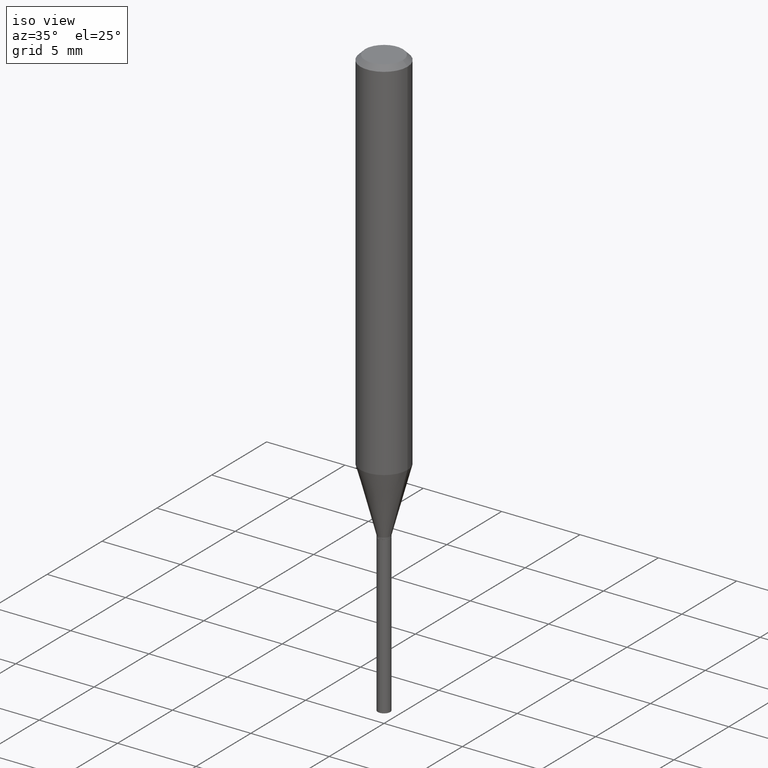
[diagram: clean part render]
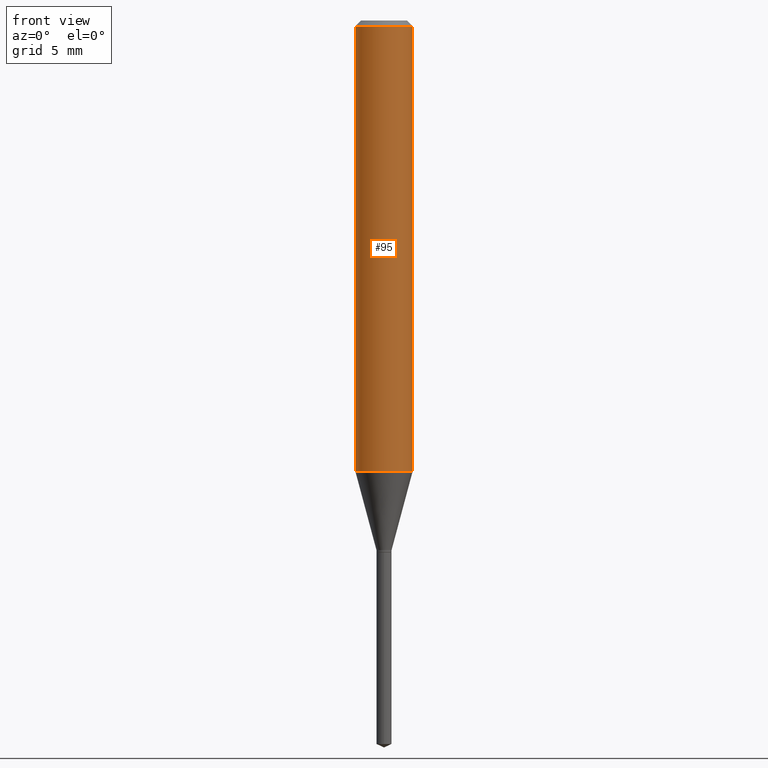
[diagram: tour spotlight — one face highlighted and labeled with its STEP entity id]
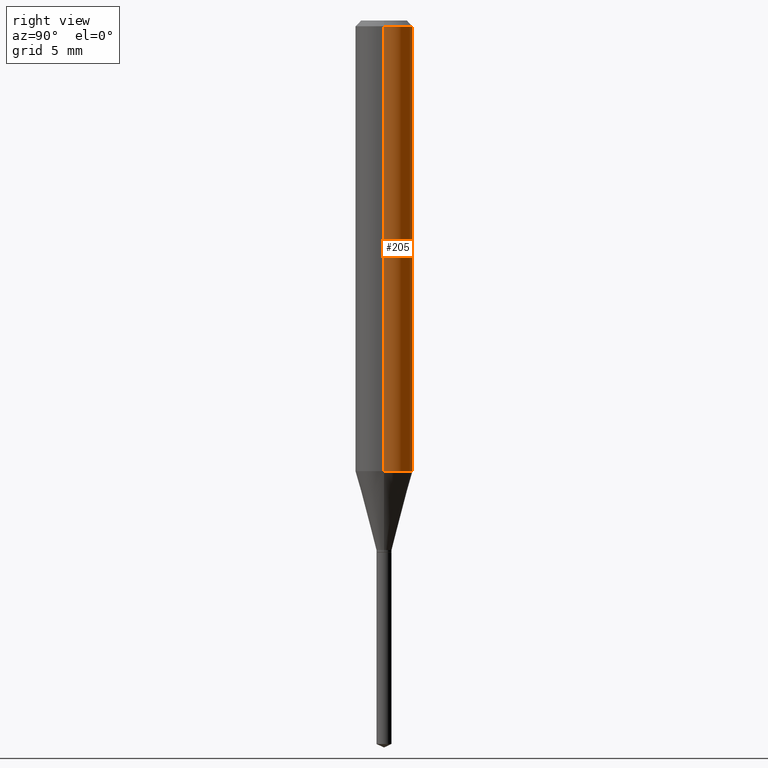
[diagram: tour spotlight — one face highlighted and labeled with its STEP entity id]
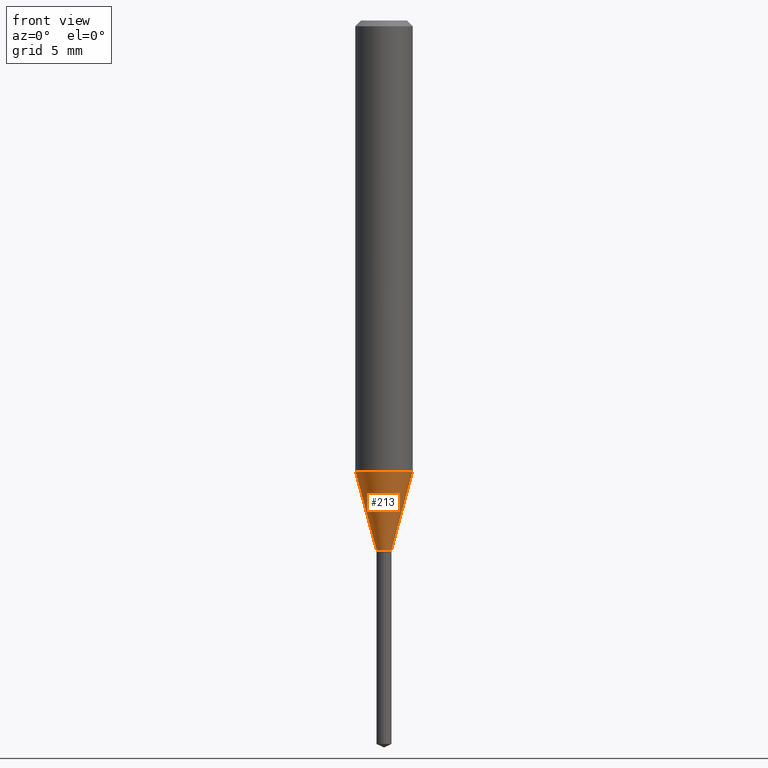
[diagram: tour spotlight — one face highlighted and labeled with its STEP entity id]
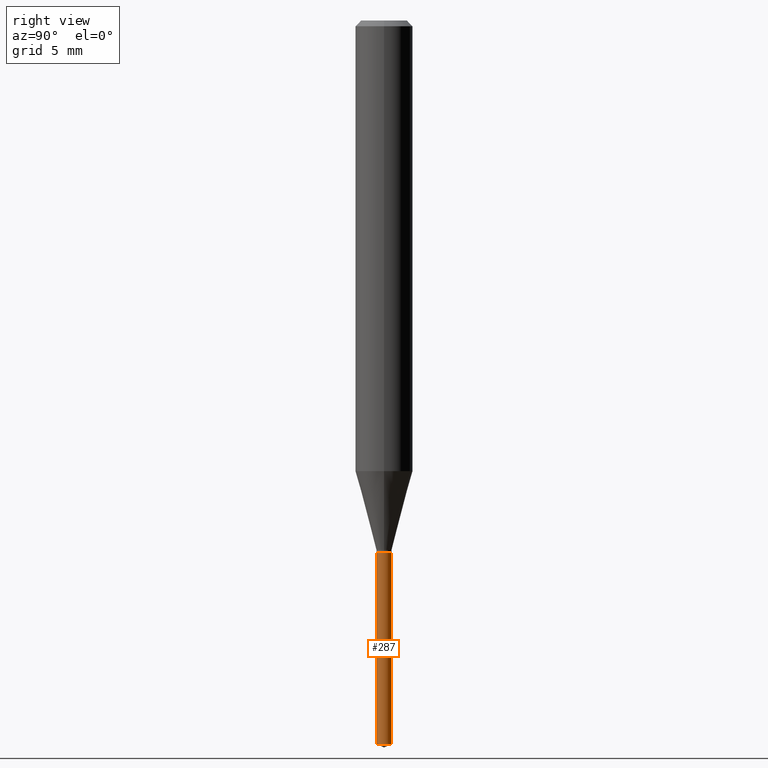
[diagram: tour spotlight — one face highlighted and labeled with its STEP entity id]
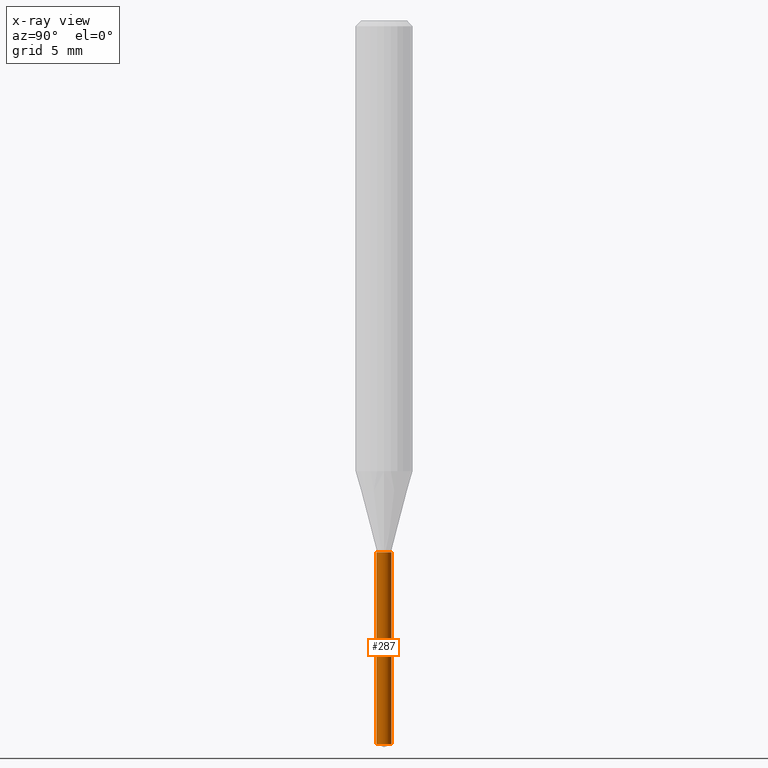
[diagram: x-ray of the same camera — body ghosted, this tour face saturated]
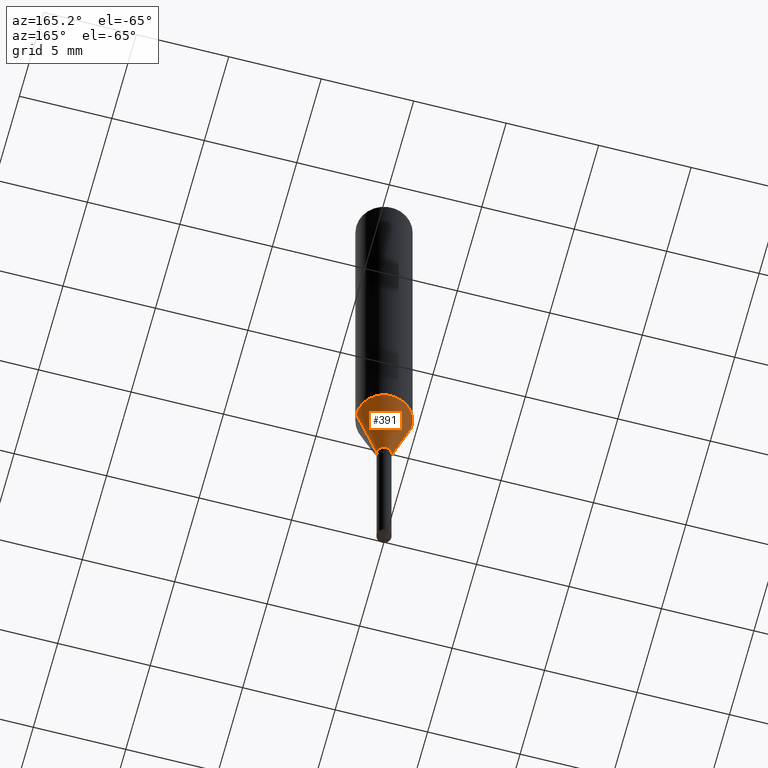
[diagram: tour spotlight — one face highlighted and labeled with its STEP entity id]
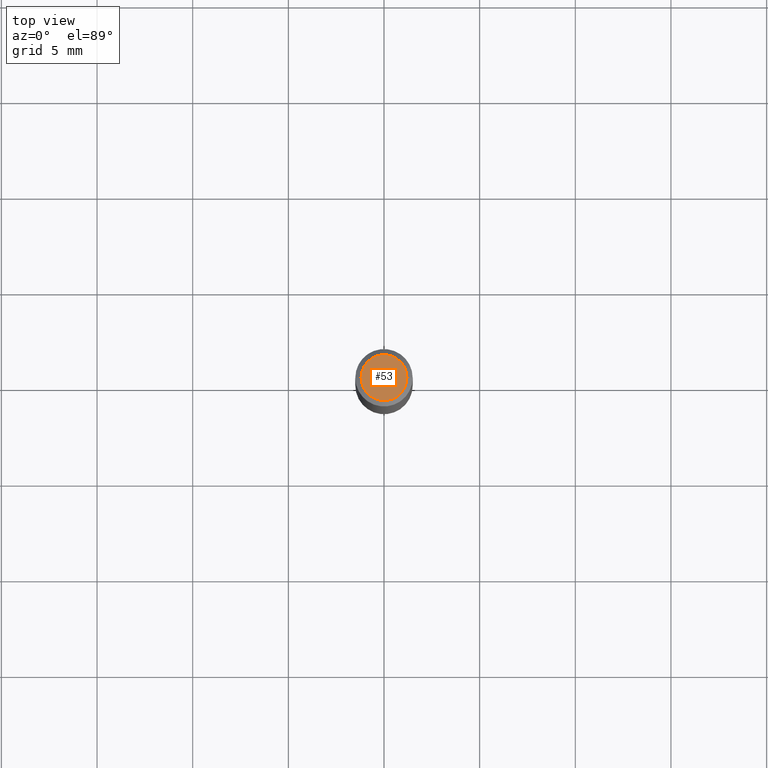
[diagram: tour spotlight — one face highlighted and labeled with its STEP entity id]
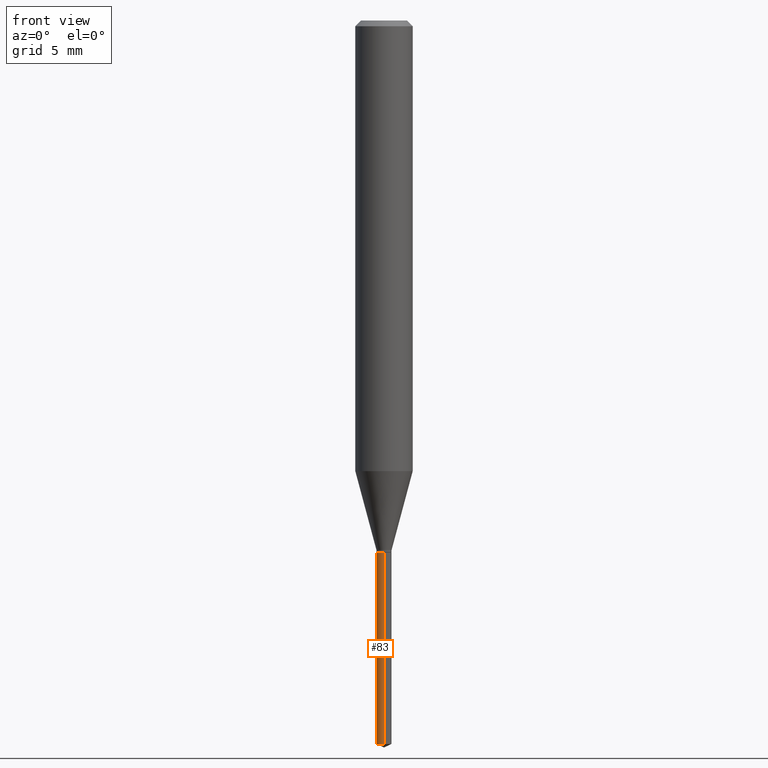
[diagram: tour spotlight — one face highlighted and labeled with its STEP entity id]
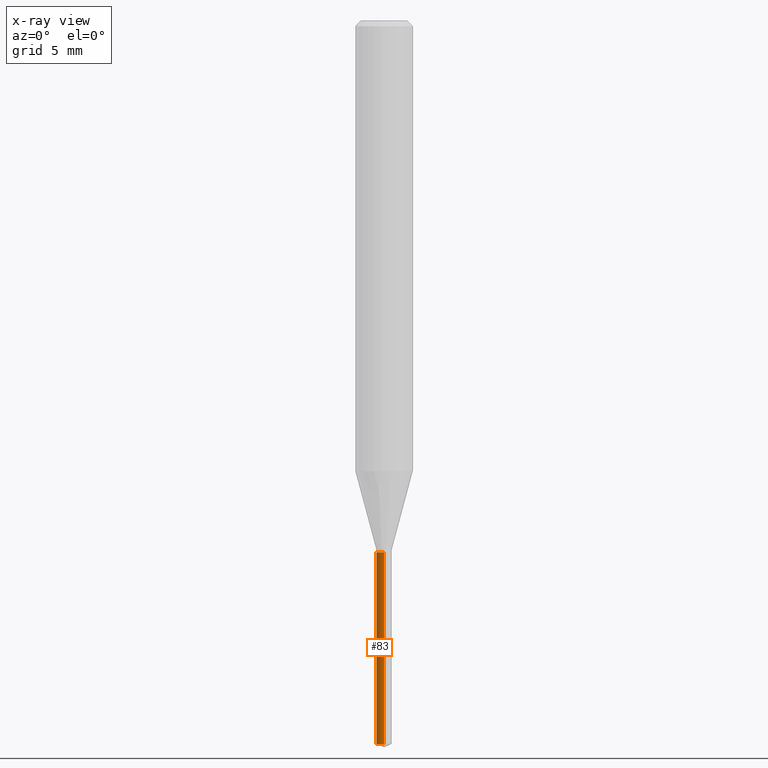
[diagram: x-ray of the same camera — body ghosted, this tour face saturated]
A machine part: a face-by-face anatomy tour. The part has 17 B-rep faces; the first image is the clean iso view, then the 7 largest visible faces are spotlighted one at a time (largest first), each with its STEP entity span.

Face 1 — front view, entity #95. In plain terms, the highlighted cylindrical surface (edge-blend (fillet) strip) has radius 1.4999 mm, axis along (-0, 0, 1).
Definition (entity closure, byte-faithful):
#32 = EDGE_CURVE ( 'NONE', #226, #334, #427, .T. ) ;
#38 = AXIS2_PLACEMENT_3D ( 'NONE', #190, #447, #75 ) ;
#59 = ORIENTED_EDGE ( 'NONE', *, *, #352, .T. ) ;
#75 = DIRECTION ( 'NONE',  ( 1.000000000000000000, -6.982962677686266711E-15, 0.000000000000000000 ) ) ;
#95 = ADVANCED_FACE ( 'NONE', ( #417 ), #112, .T. ) ;
#112 = CYLINDRICAL_SURFACE ( 'NONE', #240, 0.05905000000000005383 ) ;
#168 = CARTESIAN_POINT ( 'NONE',  ( 0.05905000000000010935, -3.650538529053141123E-15, -0.9274557898707536108 ) ) ;
#171 = CIRCLE ( 'NONE', #199, 0.05905000000000010935 ) ;
#182 = DIRECTION ( 'NONE',  ( 1.000000000000000000, -6.982962677686267499E-15, 0.000000000000000000 ) ) ;
#190 = CARTESIAN_POINT ( 'NONE',  ( 2.888098660104663766E-31, -4.123439461173779647E-17, -0.01181000000000007044 ) ) ;
#199 = AXIS2_PLACEMENT_3D ( 'NONE', #436, #296, #182 ) ;
#201 = ORIENTED_EDGE ( 'NONE', *, *, #32, .F. ) ;
#206 = LINE ( 'NONE', #275, #411 ) ;
#214 = CARTESIAN_POINT ( 'NONE',  ( -0.05905000000000010935, -2.818619097469426315E-15, -0.9274557898707536108 ) ) ;
#226 = VERTEX_POINT ( 'NONE', #278 ) ;
#238 = EDGE_LOOP ( 'NONE', ( #437, #362, #59, #201 ) ) ;
#240 = AXIS2_PLACEMENT_3D ( 'NONE', #268, #241, #413 ) ;
#241 = DIRECTION ( 'NONE',  ( -2.445468806185136597E-29, 3.491481338843145583E-15, 1.000000000000000000 ) ) ;
#251 = EDGE_CURVE ( 'NONE', #330, #226, #206, .T. ) ;
#252 = VECTOR ( 'NONE', #329, 39.37007874015748143 ) ;
#268 = CARTESIAN_POINT ( 'NONE',  ( 0.000000000000000000, 0.000000000000000000, 0.000000000000000000 ) ) ;
#275 = CARTESIAN_POINT ( 'NONE',  ( -0.05905000000000005383, 4.195754854663395423E-16, -2.904631170795524694E-30 ) ) ;
#278 = CARTESIAN_POINT ( 'NONE',  ( -0.05904999999999999832, -1.220139003307412078E-15, -0.01181000000000007044 ) ) ;
#285 = CARTESIAN_POINT ( 'NONE',  ( 0.05905000000000005383, -4.123439461173744271E-16, 2.879382386107502672E-30 ) ) ;
#296 = DIRECTION ( 'NONE',  ( -2.445468806185136597E-29, 3.491481338843145583E-15, 1.000000000000000000 ) ) ;
#307 = VERTEX_POINT ( 'NONE', #168 ) ;
#312 = DIRECTION ( 'NONE',  ( -2.445468806185136877E-29, 3.491481338843145188E-15, 1.000000000000000000 ) ) ;
#329 = DIRECTION ( 'NONE',  ( -2.445468806185136877E-29, 3.491481338843145188E-15, 1.000000000000000000 ) ) ;
#330 = VERTEX_POINT ( 'NONE', #214 ) ;
#334 = VERTEX_POINT ( 'NONE', #401 ) ;
#352 = EDGE_CURVE ( 'NONE', #307, #334, #359, .T. ) ;
#359 = LINE ( 'NONE', #285, #252 ) ;
#362 = ORIENTED_EDGE ( 'NONE', *, *, #460, .T. ) ;
#401 = CARTESIAN_POINT ( 'NONE',  ( 0.05904999999999999832, -4.535783407291118600E-16, -0.01181000000000007044 ) ) ;
#411 = VECTOR ( 'NONE', #312, 39.37007874015748143 ) ;
#413 = DIRECTION ( 'NONE',  ( 1.000000000000000000, -6.982962677686266711E-15, 4.876176775795935793E-29 ) ) ;
#417 = FACE_OUTER_BOUND ( 'NONE', #238, .T. ) ;
#427 = CIRCLE ( 'NONE', #38, 0.05904999999999999832 ) ;
#436 = CARTESIAN_POINT ( 'NONE',  ( 2.268064203244724858E-29, -3.238194582935765808E-15, -0.9274557898707536108 ) ) ;
#437 = ORIENTED_EDGE ( 'NONE', *, *, #251, .F. ) ;
#447 = DIRECTION ( 'NONE',  ( -2.445468806185136597E-29, 3.491481338843145583E-15, 1.000000000000000000 ) ) ;
#460 = EDGE_CURVE ( 'NONE', #330, #307, #171, .T. ) ;

Face 2 — right view, entity #205. In plain terms, the highlighted cylindrical surface (edge-blend (fillet) strip) has radius 1.4999 mm, axis along (-0, 0, 1).
Definition (entity closure, byte-faithful):
#6 = CIRCLE ( 'NONE', #463, 0.05904999999999999832 ) ;
#23 = DIRECTION ( 'NONE',  ( -2.445468806185136597E-29, 3.491481338843145583E-15, 1.000000000000000000 ) ) ;
#48 = CYLINDRICAL_SURFACE ( 'NONE', #313, 0.05905000000000005383 ) ;
#61 = CIRCLE ( 'NONE', #196, 0.05905000000000010935 ) ;
#149 = DIRECTION ( 'NONE',  ( 1.000000000000000000, -6.982962677686267499E-15, 0.000000000000000000 ) ) ;
#166 = DIRECTION ( 'NONE',  ( -2.445468806185136597E-29, 3.491481338843145583E-15, 1.000000000000000000 ) ) ;
#168 = CARTESIAN_POINT ( 'NONE',  ( 0.05905000000000010935, -3.650538529053141123E-15, -0.9274557898707536108 ) ) ;
#196 = AXIS2_PLACEMENT_3D ( 'NONE', #378, #303, #149 ) ;
#204 = DIRECTION ( 'NONE',  ( 1.000000000000000000, -6.982962677686266711E-15, 4.876176775795935793E-29 ) ) ;
#205 = ADVANCED_FACE ( 'NONE', ( #423 ), #48, .T. ) ;
#206 = LINE ( 'NONE', #275, #411 ) ;
#214 = CARTESIAN_POINT ( 'NONE',  ( -0.05905000000000010935, -2.818619097469426315E-15, -0.9274557898707536108 ) ) ;
#216 = DIRECTION ( 'NONE',  ( 1.000000000000000000, -6.982962677686266711E-15, 0.000000000000000000 ) ) ;
#226 = VERTEX_POINT ( 'NONE', #278 ) ;
#251 = EDGE_CURVE ( 'NONE', #330, #226, #206, .T. ) ;
#252 = VECTOR ( 'NONE', #329, 39.37007874015748143 ) ;
#275 = CARTESIAN_POINT ( 'NONE',  ( -0.05905000000000005383, 4.195754854663395423E-16, -2.904631170795524694E-30 ) ) ;
#278 = CARTESIAN_POINT ( 'NONE',  ( -0.05904999999999999832, -1.220139003307412078E-15, -0.01181000000000007044 ) ) ;
#285 = CARTESIAN_POINT ( 'NONE',  ( 0.05905000000000005383, -4.123439461173744271E-16, 2.879382386107502672E-30 ) ) ;
#289 = CARTESIAN_POINT ( 'NONE',  ( 2.888098660104663766E-31, -4.123439461173779647E-17, -0.01181000000000007044 ) ) ;
#294 = EDGE_LOOP ( 'NONE', ( #368, #295, #453, #374 ) ) ;
#295 = ORIENTED_EDGE ( 'NONE', *, *, #251, .T. ) ;
#303 = DIRECTION ( 'NONE',  ( -2.445468806185136597E-29, 3.491481338843145583E-15, 1.000000000000000000 ) ) ;
#307 = VERTEX_POINT ( 'NONE', #168 ) ;
#312 = DIRECTION ( 'NONE',  ( -2.445468806185136877E-29, 3.491481338843145188E-15, 1.000000000000000000 ) ) ;
#313 = AXIS2_PLACEMENT_3D ( 'NONE', #430, #166, #204 ) ;
#329 = DIRECTION ( 'NONE',  ( -2.445468806185136877E-29, 3.491481338843145188E-15, 1.000000000000000000 ) ) ;
#330 = VERTEX_POINT ( 'NONE', #214 ) ;
#334 = VERTEX_POINT ( 'NONE', #401 ) ;
#352 = EDGE_CURVE ( 'NONE', #307, #334, #359, .T. ) ;
#359 = LINE ( 'NONE', #285, #252 ) ;
#368 = ORIENTED_EDGE ( 'NONE', *, *, #468, .T. ) ;
#371 = EDGE_CURVE ( 'NONE', #334, #226, #6, .T. ) ;
#374 = ORIENTED_EDGE ( 'NONE', *, *, #352, .F. ) ;
#378 = CARTESIAN_POINT ( 'NONE',  ( 2.268064203244724858E-29, -3.238194582935765808E-15, -0.9274557898707536108 ) ) ;
#401 = CARTESIAN_POINT ( 'NONE',  ( 0.05904999999999999832, -4.535783407291118600E-16, -0.01181000000000007044 ) ) ;
#411 = VECTOR ( 'NONE', #312, 39.37007874015748143 ) ;
#423 = FACE_OUTER_BOUND ( 'NONE', #294, .T. ) ;
#430 = CARTESIAN_POINT ( 'NONE',  ( 0.000000000000000000, 0.000000000000000000, 0.000000000000000000 ) ) ;
#453 = ORIENTED_EDGE ( 'NONE', *, *, #371, .F. ) ;
#463 = AXIS2_PLACEMENT_3D ( 'NONE', #289, #23, #216 ) ;
#468 = EDGE_CURVE ( 'NONE', #307, #330, #61, .T. ) ;

Face 3 — front view, entity #213. In plain terms, the highlighted conical surface has half-angle 15 deg.
Definition (entity closure, byte-faithful):
#13 = AXIS2_PLACEMENT_3D ( 'NONE', #390, #212, #276 ) ;
#94 = CARTESIAN_POINT ( 'NONE',  ( -0.01554999999999999959, -3.694526967660564608E-15, -1.089799999999999880 ) ) ;
#96 = VECTOR ( 'NONE', #350, 39.37007874015748854 ) ;
#103 = VERTEX_POINT ( 'NONE', #342 ) ;
#118 = EDGE_LOOP ( 'NONE', ( #348, #328, #442, #419 ) ) ;
#122 = CARTESIAN_POINT ( 'NONE',  ( 2.665071904980561815E-29, -3.805016363071259851E-15, -1.089799999999999880 ) ) ;
#125 = CARTESIAN_POINT ( 'NONE',  ( 0.01554999999999999959, -3.913601432709281317E-15, -1.089799999999999880 ) ) ;
#128 = FACE_OUTER_BOUND ( 'NONE', #118, .T. ) ;
#139 = LINE ( 'NONE', #94, #407 ) ;
#162 = CARTESIAN_POINT ( 'NONE',  ( 0.01554999999999999959, -3.913601432709281317E-15, -1.089799999999999880 ) ) ;
#168 = CARTESIAN_POINT ( 'NONE',  ( 0.05905000000000010935, -3.650538529053141123E-15, -0.9274557898707536108 ) ) ;
#171 = CIRCLE ( 'NONE', #199, 0.05905000000000010935 ) ;
#182 = DIRECTION ( 'NONE',  ( 1.000000000000000000, -6.982962677686267499E-15, 0.000000000000000000 ) ) ;
#187 = EDGE_CURVE ( 'NONE', #235, #307, #429, .T. ) ;
#199 = AXIS2_PLACEMENT_3D ( 'NONE', #436, #296, #182 ) ;
#202 = DIRECTION ( 'NONE',  ( 1.000000000000000000, -6.982962677686261189E-15, 0.000000000000000000 ) ) ;
#212 = DIRECTION ( 'NONE',  ( -2.445468806185136597E-29, 3.491481338843145583E-15, 1.000000000000000000 ) ) ;
#213 = ADVANCED_FACE ( 'NONE', ( #128 ), #393, .T. ) ;
#214 = CARTESIAN_POINT ( 'NONE',  ( -0.05905000000000010935, -2.818619097469426315E-15, -0.9274557898707536108 ) ) ;
#235 = VERTEX_POINT ( 'NONE', #162 ) ;
#245 = CIRCLE ( 'NONE', #420, 0.01554999999999999959 ) ;
#264 = EDGE_CURVE ( 'NONE', #103, #235, #245, .T. ) ;
#276 = DIRECTION ( 'NONE',  ( 1.000000000000000000, -6.982962677686261189E-15, 0.000000000000000000 ) ) ;
#296 = DIRECTION ( 'NONE',  ( -2.445468806185136597E-29, 3.491481338843145583E-15, 1.000000000000000000 ) ) ;
#307 = VERTEX_POINT ( 'NONE', #168 ) ;
#328 = ORIENTED_EDGE ( 'NONE', *, *, #264, .T. ) ;
#330 = VERTEX_POINT ( 'NONE', #214 ) ;
#337 = EDGE_CURVE ( 'NONE', #103, #330, #139, .T. ) ;
#342 = CARTESIAN_POINT ( 'NONE',  ( -0.01554999999999999959, -3.701859078472134923E-15, -1.089799999999999880 ) ) ;
#348 = ORIENTED_EDGE ( 'NONE', *, *, #337, .F. ) ;
#350 = DIRECTION ( 'NONE',  ( 0.2588190451025211281, 1.565188264969622954E-15, 0.9659258262890679791 ) ) ;
#390 = CARTESIAN_POINT ( 'NONE',  ( 2.665071904980561815E-29, -3.805016363071259851E-15, -1.089799999999999880 ) ) ;
#393 = CONICAL_SURFACE ( 'NONE', #13, 0.01554999999999999959, 0.2617993877991498519 ) ;
#407 = VECTOR ( 'NONE', #469, 39.37007874015748854 ) ;
#419 = ORIENTED_EDGE ( 'NONE', *, *, #460, .F. ) ;
#420 = AXIS2_PLACEMENT_3D ( 'NONE', #122, #426, #202 ) ;
#426 = DIRECTION ( 'NONE',  ( -2.445468806185136597E-29, 3.491481338843145583E-15, 1.000000000000000000 ) ) ;
#429 = LINE ( 'NONE', #125, #96 ) ;
#436 = CARTESIAN_POINT ( 'NONE',  ( 2.268064203244724858E-29, -3.238194582935765808E-15, -0.9274557898707536108 ) ) ;
#442 = ORIENTED_EDGE ( 'NONE', *, *, #187, .T. ) ;
#460 = EDGE_CURVE ( 'NONE', #330, #307, #171, .T. ) ;
#469 = DIRECTION ( 'NONE',  ( -0.2588190451025211281, 5.211531920934547886E-15, 0.9659258262890679791 ) ) ;

Face 4 — right view, entity #287. An x-ray twin of the same camera follows (body ghosted, this face saturated) — the face is partly hidden behind the body. In plain terms, the highlighted cylindrical surface (edge-blend (fillet) strip) has radius 0.395 mm, axis along (-0, 0, 1).
Definition (entity closure, byte-faithful):
#21 = VECTOR ( 'NONE', #246, 39.37007874015748143 ) ;
#26 = DIRECTION ( 'NONE',  ( -2.445470214571802116E-29, 3.491479321953280158E-15, 1.000000000000000000 ) ) ;
#27 = VERTEX_POINT ( 'NONE', #157 ) ;
#36 = EDGE_LOOP ( 'NONE', ( #195, #227, #402, #416 ) ) ;
#42 = EDGE_CURVE ( 'NONE', #381, #254, #200, .T. ) ;
#43 = CYLINDRICAL_SURFACE ( 'NONE', #153, 0.01554999999999999959 ) ;
#62 = CARTESIAN_POINT ( 'NONE',  ( 1.104893954107319992E-16, 0.01554999999999480235, -1.488848915915689686 ) ) ;
#69 = VECTOR ( 'NONE', #108, 39.37007874015748143 ) ;
#82 = CARTESIAN_POINT ( 'NONE',  ( -1.085850696379850431E-16, -0.01555000000000520202, -1.488848915915689686 ) ) ;
#87 = CARTESIAN_POINT ( 'NONE',  ( -1.085850696379946697E-16, -0.01555000000000382118, -1.094499999999999806 ) ) ;
#105 = DIRECTION ( 'NONE',  ( -2.445470214571802116E-29, 3.491479321953280158E-15, 1.000000000000000000 ) ) ;
#108 = DIRECTION ( 'NONE',  ( -2.445470214571802396E-29, 3.491479321953280158E-15, 1.000000000000000000 ) ) ;
#120 = CARTESIAN_POINT ( 'NONE',  ( 1.104893954107320238E-16, 0.01554999999999617626, -1.094499999999999806 ) ) ;
#136 = AXIS2_PLACEMENT_3D ( 'NONE', #173, #26, #257 ) ;
#153 = AXIS2_PLACEMENT_3D ( 'NONE', #282, #247, #396 ) ;
#157 = CARTESIAN_POINT ( 'NONE',  ( -1.085850696379946697E-16, -0.01555000000000382118, -1.094499999999999806 ) ) ;
#173 = CARTESIAN_POINT ( 'NONE',  ( 2.676565608369631794E-29, -3.821426325363822773E-15, -1.094499999999999806 ) ) ;
#188 = CIRCLE ( 'NONE', #281, 0.01554999999999999959 ) ;
#195 = ORIENTED_EDGE ( 'NONE', *, *, #326, .T. ) ;
#200 = LINE ( 'NONE', #237, #69 ) ;
#217 = VERTEX_POINT ( 'NONE', #82 ) ;
#225 = CARTESIAN_POINT ( 'NONE',  ( 3.640934136390131342E-29, -5.198287410918146511E-15, -1.488848915915689686 ) ) ;
#227 = ORIENTED_EDGE ( 'NONE', *, *, #42, .T. ) ;
#237 = CARTESIAN_POINT ( 'NONE',  ( 1.104893954107223233E-16, 0.01554999999999617626, -1.094499999999999806 ) ) ;
#246 = DIRECTION ( 'NONE',  ( -2.445470214571802396E-29, 3.491479321953280158E-15, 1.000000000000000000 ) ) ;
#247 = DIRECTION ( 'NONE',  ( -2.445470214571802116E-29, 3.491479321953280158E-15, 1.000000000000000000 ) ) ;
#254 = VERTEX_POINT ( 'NONE', #120 ) ;
#257 = DIRECTION ( 'NONE',  ( -6.982962677686265922E-15, -1.000000000000000000, 0.000000000000000000 ) ) ;
#277 = EDGE_CURVE ( 'NONE', #217, #27, #459, .T. ) ;
#281 = AXIS2_PLACEMENT_3D ( 'NONE', #225, #105, #363 ) ;
#282 = CARTESIAN_POINT ( 'NONE',  ( 2.676565608369631794E-29, -3.821426325363822773E-15, -1.094499999999999806 ) ) ;
#287 = ADVANCED_FACE ( 'NONE', ( #347 ), #43, .T. ) ;
#326 = EDGE_CURVE ( 'NONE', #217, #381, #188, .T. ) ;
#347 = FACE_OUTER_BOUND ( 'NONE', #36, .T. ) ;
#353 = CIRCLE ( 'NONE', #136, 0.01554999999999999959 ) ;
#363 = DIRECTION ( 'NONE',  ( -6.982962677686265922E-15, -1.000000000000000000, 0.000000000000000000 ) ) ;
#375 = EDGE_CURVE ( 'NONE', #27, #254, #353, .T. ) ;
#381 = VERTEX_POINT ( 'NONE', #62 ) ;
#396 = DIRECTION ( 'NONE',  ( -6.982962677686265922E-15, -1.000000000000000000, 0.000000000000000000 ) ) ;
#402 = ORIENTED_EDGE ( 'NONE', *, *, #375, .F. ) ;
#416 = ORIENTED_EDGE ( 'NONE', *, *, #277, .F. ) ;
#459 = LINE ( 'NONE', #87, #21 ) ;

Face 5 — auxiliary view, entity #391. In plain terms, the highlighted conical surface has half-angle 15 deg.
Definition (entity closure, byte-faithful):
#61 = CIRCLE ( 'NONE', #196, 0.05905000000000010935 ) ;
#63 = ORIENTED_EDGE ( 'NONE', *, *, #383, .T. ) ;
#76 = ORIENTED_EDGE ( 'NONE', *, *, #187, .F. ) ;
#89 = AXIS2_PLACEMENT_3D ( 'NONE', #370, #397, #399 ) ;
#92 = ORIENTED_EDGE ( 'NONE', *, *, #337, .T. ) ;
#94 = CARTESIAN_POINT ( 'NONE',  ( -0.01554999999999999959, -3.694526967660564608E-15, -1.089799999999999880 ) ) ;
#96 = VECTOR ( 'NONE', #350, 39.37007874015748854 ) ;
#101 = CONICAL_SURFACE ( 'NONE', #89, 0.01554999999999999959, 0.2617993877991498519 ) ;
#103 = VERTEX_POINT ( 'NONE', #342 ) ;
#106 = ORIENTED_EDGE ( 'NONE', *, *, #468, .F. ) ;
#113 = EDGE_LOOP ( 'NONE', ( #63, #92, #106, #76 ) ) ;
#125 = CARTESIAN_POINT ( 'NONE',  ( 0.01554999999999999959, -3.913601432709281317E-15, -1.089799999999999880 ) ) ;
#133 = CARTESIAN_POINT ( 'NONE',  ( 2.665071904980561815E-29, -3.805016363071259851E-15, -1.089799999999999880 ) ) ;
#139 = LINE ( 'NONE', #94, #407 ) ;
#149 = DIRECTION ( 'NONE',  ( 1.000000000000000000, -6.982962677686267499E-15, 0.000000000000000000 ) ) ;
#162 = CARTESIAN_POINT ( 'NONE',  ( 0.01554999999999999959, -3.913601432709281317E-15, -1.089799999999999880 ) ) ;
#168 = CARTESIAN_POINT ( 'NONE',  ( 0.05905000000000010935, -3.650538529053141123E-15, -0.9274557898707536108 ) ) ;
#187 = EDGE_CURVE ( 'NONE', #235, #307, #429, .T. ) ;
#196 = AXIS2_PLACEMENT_3D ( 'NONE', #378, #303, #149 ) ;
#214 = CARTESIAN_POINT ( 'NONE',  ( -0.05905000000000010935, -2.818619097469426315E-15, -0.9274557898707536108 ) ) ;
#219 = DIRECTION ( 'NONE',  ( 1.000000000000000000, -6.982962677686261189E-15, 0.000000000000000000 ) ) ;
#235 = VERTEX_POINT ( 'NONE', #162 ) ;
#260 = AXIS2_PLACEMENT_3D ( 'NONE', #133, #465, #219 ) ;
#303 = DIRECTION ( 'NONE',  ( -2.445468806185136597E-29, 3.491481338843145583E-15, 1.000000000000000000 ) ) ;
#307 = VERTEX_POINT ( 'NONE', #168 ) ;
#324 = FACE_OUTER_BOUND ( 'NONE', #113, .T. ) ;
#330 = VERTEX_POINT ( 'NONE', #214 ) ;
#337 = EDGE_CURVE ( 'NONE', #103, #330, #139, .T. ) ;
#342 = CARTESIAN_POINT ( 'NONE',  ( -0.01554999999999999959, -3.701859078472134923E-15, -1.089799999999999880 ) ) ;
#350 = DIRECTION ( 'NONE',  ( 0.2588190451025211281, 1.565188264969622954E-15, 0.9659258262890679791 ) ) ;
#351 = CIRCLE ( 'NONE', #260, 0.01554999999999999959 ) ;
#370 = CARTESIAN_POINT ( 'NONE',  ( 2.665071904980561815E-29, -3.805016363071259851E-15, -1.089799999999999880 ) ) ;
#378 = CARTESIAN_POINT ( 'NONE',  ( 2.268064203244724858E-29, -3.238194582935765808E-15, -0.9274557898707536108 ) ) ;
#383 = EDGE_CURVE ( 'NONE', #235, #103, #351, .T. ) ;
#391 = ADVANCED_FACE ( 'NONE', ( #324 ), #101, .T. ) ;
#397 = DIRECTION ( 'NONE',  ( -2.445468806185136597E-29, 3.491481338843145583E-15, 1.000000000000000000 ) ) ;
#399 = DIRECTION ( 'NONE',  ( 1.000000000000000000, -6.982962677686261189E-15, 0.000000000000000000 ) ) ;
#407 = VECTOR ( 'NONE', #469, 39.37007874015748854 ) ;
#429 = LINE ( 'NONE', #125, #96 ) ;
#465 = DIRECTION ( 'NONE',  ( -2.445468806185136597E-29, 3.491481338843145583E-15, 1.000000000000000000 ) ) ;
#468 = EDGE_CURVE ( 'NONE', #307, #330, #61, .T. ) ;
#469 = DIRECTION ( 'NONE',  ( -0.2588190451025211281, 5.211531920934547886E-15, 0.9659258262890679791 ) ) ;

Face 6 — top view, entity #53. In plain terms, the highlighted planar face has unit normal (0, -0, -1).
Definition (entity closure, byte-faithful):
#4 = EDGE_CURVE ( 'NONE', #55, #474, #259, .T. ) ;
#25 = EDGE_LOOP ( 'NONE', ( #306, #269 ) ) ;
#33 = CARTESIAN_POINT ( 'NONE',  ( 0.04724000000000000421, -3.852183633974369345E-16, -3.380025165621689721E-19 ) ) ;
#34 = DIRECTION ( 'NONE',  ( 2.438088387897960049E-29, -3.491481338843145188E-15, -1.000000000000000000 ) ) ;
#52 = EDGE_CURVE ( 'NONE', #474, #55, #119, .T. ) ;
#53 = ADVANCED_FACE ( 'NONE', ( #80 ), #305, .F. ) ;
#55 = VERTEX_POINT ( 'NONE', #263 ) ;
#67 = AXIS2_PLACEMENT_3D ( 'NONE', #446, #34, #110 ) ;
#79 = AXIS2_PLACEMENT_3D ( 'NONE', #485, #338, #150 ) ;
#80 = FACE_OUTER_BOUND ( 'NONE', #25, .T. ) ;
#110 = DIRECTION ( 'NONE',  ( -1.000000000000000000, 6.982962677686265922E-15, -4.876176775795935793E-29 ) ) ;
#119 = CIRCLE ( 'NONE', #79, 0.04724000000000000421 ) ;
#132 = DIRECTION ( 'NONE',  ( -2.445468806185136597E-29, 3.491481338843145583E-15, 1.000000000000000000 ) ) ;
#150 = DIRECTION ( 'NONE',  ( 1.000000000000000000, -6.982962677686266711E-15, 4.876185090822587894E-29 ) ) ;
#151 = AXIS2_PLACEMENT_3D ( 'NONE', #467, #132, #288 ) ;
#259 = CIRCLE ( 'NONE', #151, 0.04724000000000000421 ) ;
#263 = CARTESIAN_POINT ( 'NONE',  ( -0.04724000000000000421, 3.504923541997677355E-16, -3.380025165670481712E-19 ) ) ;
#269 = ORIENTED_EDGE ( 'NONE', *, *, #52, .T. ) ;
#288 = DIRECTION ( 'NONE',  ( 1.000000000000000000, -6.982962677686266711E-15, 4.876185090822587894E-29 ) ) ;
#305 = PLANE ( 'NONE',  #67 ) ;
#306 = ORIENTED_EDGE ( 'NONE', *, *, #4, .T. ) ;
#338 = DIRECTION ( 'NONE',  ( -2.445468806185136597E-29, 3.491481338843145583E-15, 1.000000000000000000 ) ) ;
#446 = CARTESIAN_POINT ( 'NONE',  ( 4.132873053354867254E-48, -5.900647395337818946E-34, -1.690012582823346072E-19 ) ) ;
#467 = CARTESIAN_POINT ( 'NONE',  ( 8.265746106709734507E-48, -1.180129479067563789E-33, -3.380025165646692144E-19 ) ) ;
#474 = VERTEX_POINT ( 'NONE', #33 ) ;
#485 = CARTESIAN_POINT ( 'NONE',  ( 8.265746106709734507E-48, -1.180129479067563789E-33, -3.380025165646692144E-19 ) ) ;

Face 7 — front view, entity #83. An x-ray twin of the same camera follows (body ghosted, this face saturated) — the face is partly hidden behind the body. In plain terms, the highlighted cylindrical surface (edge-blend (fillet) strip) has radius 0.395 mm, axis along (-0, 0, 1).
Definition (entity closure, byte-faithful):
#9 = CARTESIAN_POINT ( 'NONE',  ( 2.676565608369631794E-29, -3.821426325363822773E-15, -1.094499999999999806 ) ) ;
#21 = VECTOR ( 'NONE', #246, 39.37007874015748143 ) ;
#27 = VERTEX_POINT ( 'NONE', #157 ) ;
#39 = DIRECTION ( 'NONE',  ( -6.982962677686265922E-15, -1.000000000000000000, 0.000000000000000000 ) ) ;
#42 = EDGE_CURVE ( 'NONE', #381, #254, #200, .T. ) ;
#58 = EDGE_CURVE ( 'NONE', #381, #217, #161, .T. ) ;
#62 = CARTESIAN_POINT ( 'NONE',  ( 1.104893954107319992E-16, 0.01554999999999480235, -1.488848915915689686 ) ) ;
#69 = VECTOR ( 'NONE', #108, 39.37007874015748143 ) ;
#73 = ORIENTED_EDGE ( 'NONE', *, *, #42, .F. ) ;
#81 = ORIENTED_EDGE ( 'NONE', *, *, #277, .T. ) ;
#82 = CARTESIAN_POINT ( 'NONE',  ( -1.085850696379850431E-16, -0.01555000000000520202, -1.488848915915689686 ) ) ;
#83 = ADVANCED_FACE ( 'NONE', ( #192 ), #340, .T. ) ;
#87 = CARTESIAN_POINT ( 'NONE',  ( -1.085850696379946697E-16, -0.01555000000000382118, -1.094499999999999806 ) ) ;
#93 = DIRECTION ( 'NONE',  ( -6.982962677686265922E-15, -1.000000000000000000, 0.000000000000000000 ) ) ;
#108 = DIRECTION ( 'NONE',  ( -2.445470214571802396E-29, 3.491479321953280158E-15, 1.000000000000000000 ) ) ;
#117 = DIRECTION ( 'NONE',  ( -2.445470214571802116E-29, 3.491479321953280158E-15, 1.000000000000000000 ) ) ;
#120 = CARTESIAN_POINT ( 'NONE',  ( 1.104893954107320238E-16, 0.01554999999999617626, -1.094499999999999806 ) ) ;
#134 = ORIENTED_EDGE ( 'NONE', *, *, #58, .T. ) ;
#157 = CARTESIAN_POINT ( 'NONE',  ( -1.085850696379946697E-16, -0.01555000000000382118, -1.094499999999999806 ) ) ;
#161 = CIRCLE ( 'NONE', #471, 0.01554999999999999959 ) ;
#163 = AXIS2_PLACEMENT_3D ( 'NONE', #9, #461, #93 ) ;
#192 = FACE_OUTER_BOUND ( 'NONE', #476, .T. ) ;
#200 = LINE ( 'NONE', #237, #69 ) ;
#217 = VERTEX_POINT ( 'NONE', #82 ) ;
#237 = CARTESIAN_POINT ( 'NONE',  ( 1.104893954107223233E-16, 0.01554999999999617626, -1.094499999999999806 ) ) ;
#246 = DIRECTION ( 'NONE',  ( -2.445470214571802396E-29, 3.491479321953280158E-15, 1.000000000000000000 ) ) ;
#254 = VERTEX_POINT ( 'NONE', #120 ) ;
#277 = EDGE_CURVE ( 'NONE', #217, #27, #459, .T. ) ;
#283 = EDGE_CURVE ( 'NONE', #254, #27, #377, .T. ) ;
#331 = ORIENTED_EDGE ( 'NONE', *, *, #283, .F. ) ;
#340 = CYLINDRICAL_SURFACE ( 'NONE', #456, 0.01554999999999999959 ) ;
#377 = CIRCLE ( 'NONE', #163, 0.01554999999999999959 ) ;
#381 = VERTEX_POINT ( 'NONE', #62 ) ;
#387 = DIRECTION ( 'NONE',  ( -2.445470214571802116E-29, 3.491479321953280158E-15, 1.000000000000000000 ) ) ;
#410 = CARTESIAN_POINT ( 'NONE',  ( 3.640934136390131342E-29, -5.198287410918146511E-15, -1.488848915915689686 ) ) ;
#444 = CARTESIAN_POINT ( 'NONE',  ( 2.676565608369631794E-29, -3.821426325363822773E-15, -1.094499999999999806 ) ) ;
#456 = AXIS2_PLACEMENT_3D ( 'NONE', #444, #387, #487 ) ;
#459 = LINE ( 'NONE', #87, #21 ) ;
#461 = DIRECTION ( 'NONE',  ( -2.445470214571802116E-29, 3.491479321953280158E-15, 1.000000000000000000 ) ) ;
#471 = AXIS2_PLACEMENT_3D ( 'NONE', #410, #117, #39 ) ;
#476 = EDGE_LOOP ( 'NONE', ( #73, #134, #81, #331 ) ) ;
#487 = DIRECTION ( 'NONE',  ( -6.982962677686265922E-15, -1.000000000000000000, 0.000000000000000000 ) ) ;